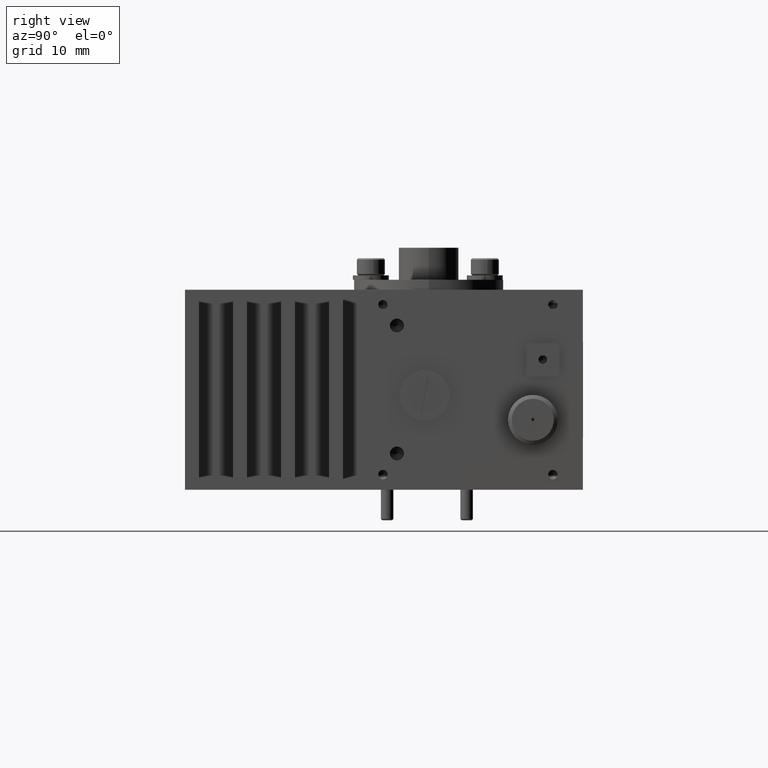
[diagram: clean part render]
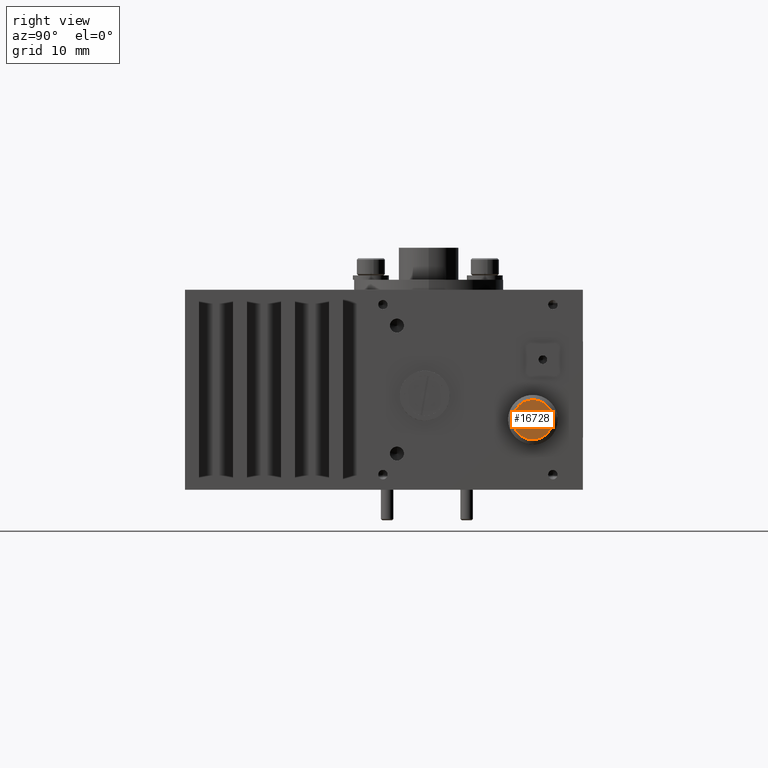
[diagram: same view with one face highlighted and labeled with its STEP entity id]
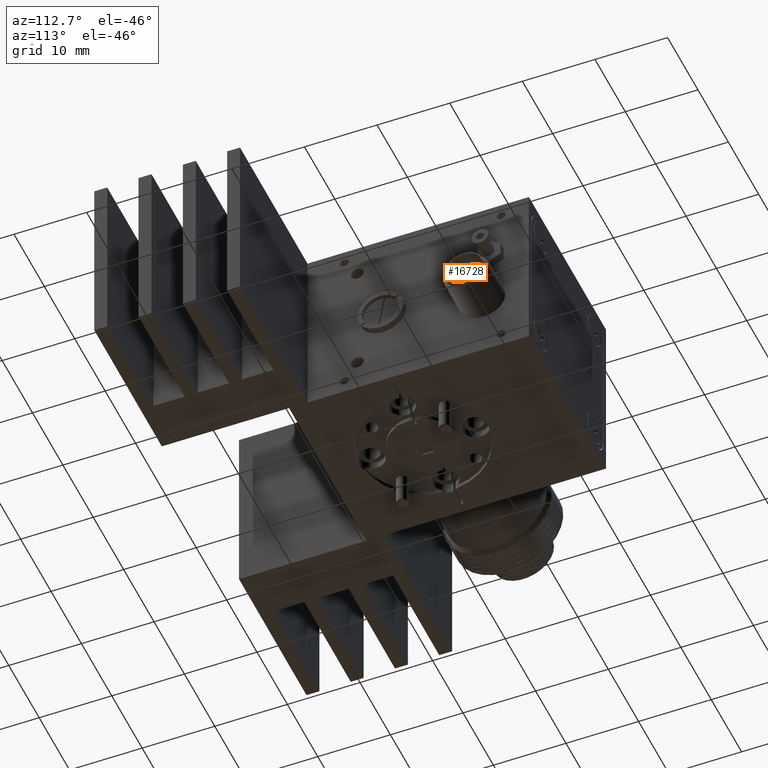
[diagram: same view with one face highlighted and labeled with its STEP entity id]
A machine part, right view. The second image highlights one B-rep face of the part: STEP entity #16728.
A second angle (auxiliary view) of the same face is appended — the face is thin or edge-on in the first view.
In plain terms, the highlighted planar face has unit normal (-1, 0, 0).
Its self-contained STEP definition (entity closure, byte-faithful):
#795 = EDGE_LOOP ( 'NONE', ( #27880, #46434 ) ) ;
#1620 = CARTESIAN_POINT ( 'NONE',  ( -32.07557711743992000, 55.09957720897322300, -5.313335864232247000 ) ) ;
#1866 = EDGE_CURVE ( 'NONE', #11449, #20374, #50778, .T. ) ;
#2256 = EDGE_CURVE ( 'NONE', #20374, #11449, #83268, .T. ) ;
#3844 = AXIS2_PLACEMENT_3D ( 'NONE', #53702, #60594, #10369 ) ;
#10369 = DIRECTION ( 'NONE',  ( 0.0000000000000000000, 0.0000000000000000000, -1.000000000000000000 ) ) ;
#10405 = FACE_BOUND ( 'NONE', #795, .T. ) ;
#11449 = VERTEX_POINT ( 'NONE', #27455 ) ;
#12265 = AXIS2_PLACEMENT_3D ( 'NONE', #57226, #65591, #31458 ) ;
#16728 = ADVANCED_FACE ( 'NONE', ( #82373, #10405 ), #19485, .F. ) ;
#19485 = PLANE ( 'NONE',  #99008 ) ;
#20374 = VERTEX_POINT ( 'NONE', #67506 ) ;
#21529 = VERTEX_POINT ( 'NONE', #99589 ) ;
#27455 = CARTESIAN_POINT ( 'NONE',  ( -32.07557711743992000, 55.09957720897322300, -2.582835864232246400 ) ) ;
#27880 = ORIENTED_EDGE ( 'NONE', *, *, #1866, .F. ) ;
#29112 = AXIS2_PLACEMENT_3D ( 'NONE', #112342, #42591, #42965 ) ;
#29345 = CARTESIAN_POINT ( 'NONE',  ( -32.07557711743992000, 55.09957720897322300, -2.773335864232246500 ) ) ;
#29721 = DIRECTION ( 'NONE',  ( -1.000000000000000000, 9.994468144066962500E-046, 8.828498614632567300E-031 ) ) ;
#31458 = DIRECTION ( 'NONE',  ( 0.0000000000000000000, 0.0000000000000000000, -1.000000000000000000 ) ) ;
#32136 = ORIENTED_EDGE ( 'NONE', *, *, #67205, .F. ) ;
#34215 = ORIENTED_EDGE ( 'NONE', *, *, #81400, .F. ) ;
#42591 = DIRECTION ( 'NONE',  ( -1.000000000000000000, 4.379057701015079600E-047, 1.751623080406021300E-046 ) ) ;
#42965 = DIRECTION ( 'NONE',  ( 0.0000000000000000000, 0.0000000000000000000, -1.000000000000000000 ) ) ;
#44815 = VERTEX_POINT ( 'NONE', #1620 ) ;
#46434 = ORIENTED_EDGE ( 'NONE', *, *, #2256, .F. ) ;
#50778 = CIRCLE ( 'NONE', #91721, 0.1905000000000001400 ) ;
#53702 = CARTESIAN_POINT ( 'NONE',  ( -32.07557711743992000, 55.09957720897322300, -2.773335864232246500 ) ) ;
#57226 = CARTESIAN_POINT ( 'NONE',  ( -32.07557711743992000, 55.09957720897322300, -2.773335864232246500 ) ) ;
#60594 = DIRECTION ( 'NONE',  ( 1.000000000000000000, -4.379057701015079600E-047, -1.751623080406021300E-046 ) ) ;
#63583 = EDGE_LOOP ( 'NONE', ( #32136, #34215 ) ) ;
#65591 = DIRECTION ( 'NONE',  ( -1.000000000000000000, 4.379057701015079600E-047, 1.751623080406021300E-046 ) ) ;
#66982 = CIRCLE ( 'NONE', #12265, 2.540000000000001400 ) ;
#67205 = EDGE_CURVE ( 'NONE', #21529, #44815, #76635, .T. ) ;
#67286 = CARTESIAN_POINT ( 'NONE',  ( -32.07557711743992000, 55.09957720897322300, -2.773335864232246500 ) ) ;
#67506 = CARTESIAN_POINT ( 'NONE',  ( -32.07557711743992000, 55.09957720897322300, -2.963835864232246700 ) ) ;
#72922 = DIRECTION ( 'NONE',  ( -8.828498614632567300E-031, -1.082467449009526800E-015, -1.000000000000000000 ) ) ;
#76635 = CIRCLE ( 'NONE', #29112, 2.540000000000001400 ) ;
#81400 = EDGE_CURVE ( 'NONE', #44815, #21529, #66982, .T. ) ;
#82373 = FACE_OUTER_BOUND ( 'NONE', #63583, .T. ) ;
#83268 = CIRCLE ( 'NONE', #3844, 0.1905000000000001400 ) ;
#85505 = DIRECTION ( 'NONE',  ( 0.0000000000000000000, 0.0000000000000000000, -1.000000000000000000 ) ) ;
#91721 = AXIS2_PLACEMENT_3D ( 'NONE', #67286, #102536, #85505 ) ;
#99008 = AXIS2_PLACEMENT_3D ( 'NONE', #29345, #29721, #72922 ) ;
#99589 = CARTESIAN_POINT ( 'NONE',  ( -32.07557711743992000, 55.09957720897322300, -0.2333358642322464200 ) ) ;
#102536 = DIRECTION ( 'NONE',  ( 1.000000000000000000, -4.379057701015079600E-047, -1.751623080406021300E-046 ) ) ;
#112342 = CARTESIAN_POINT ( 'NONE',  ( -32.07557711743992000, 55.09957720897322300, -2.773335864232246500 ) ) ;